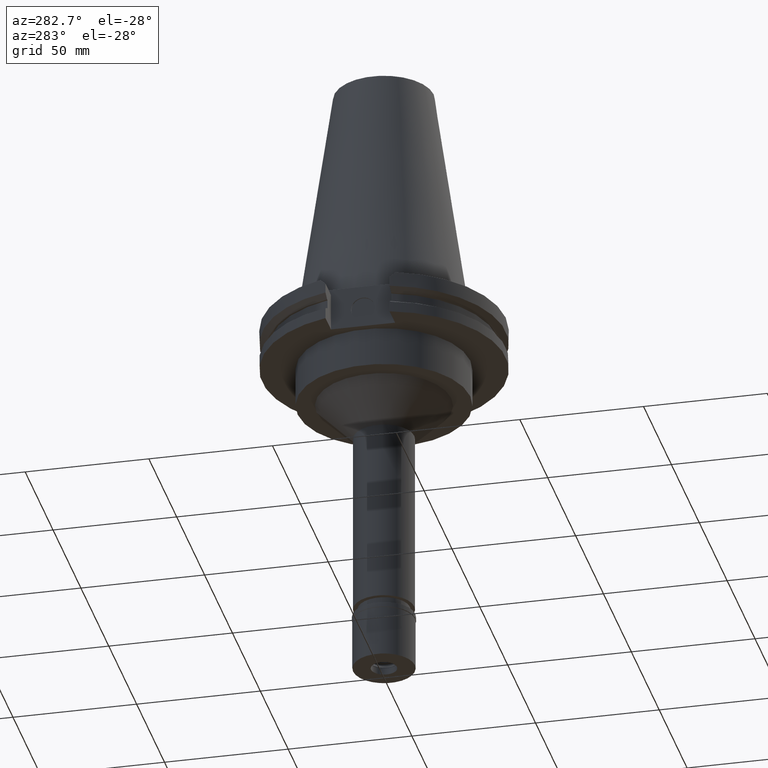
[diagram: clean part render]
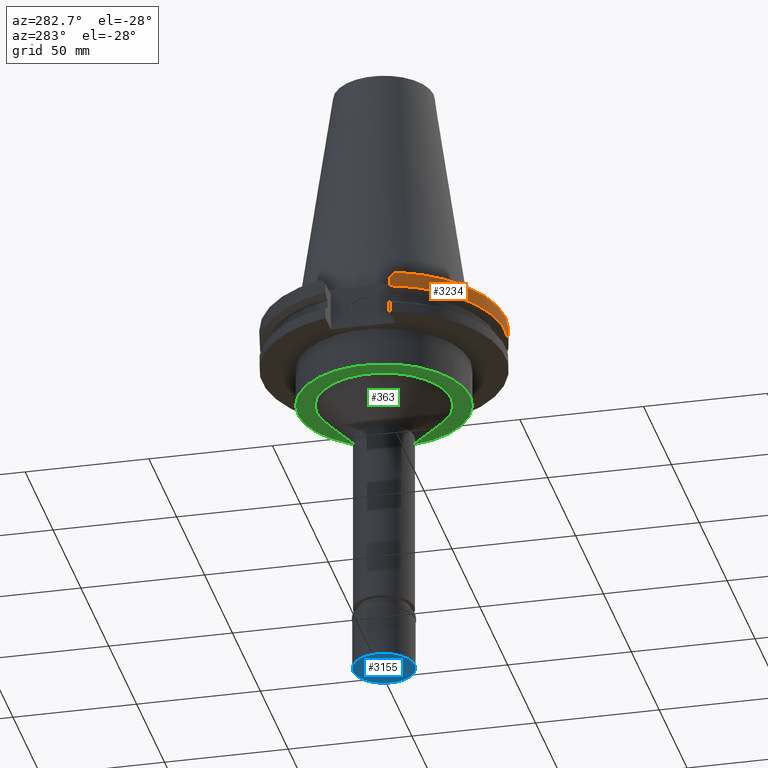
[diagram: same view with three faces highlighted in distinct colors, each labeled with its STEP entity id]
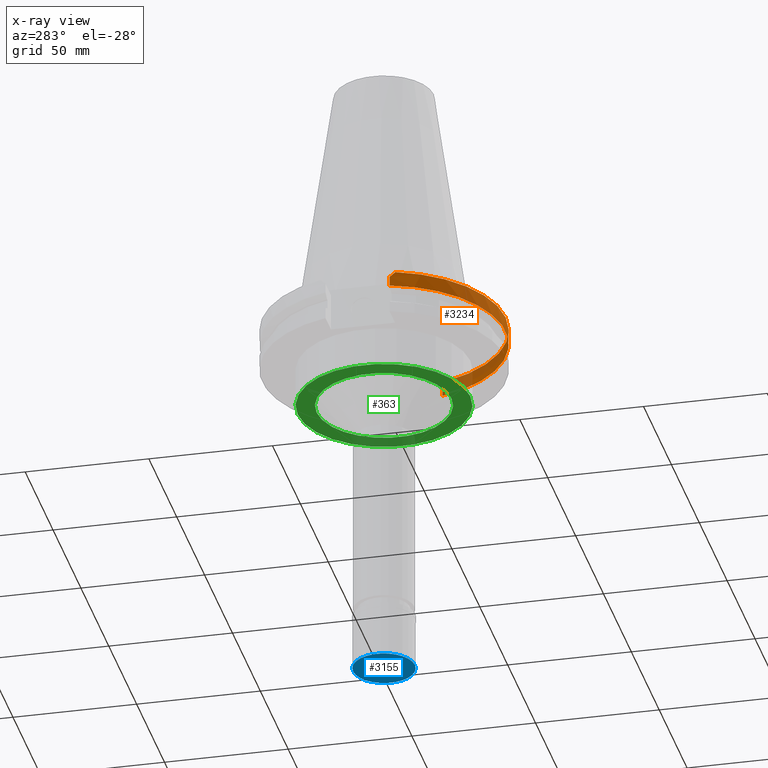
[diagram: x-ray of the same camera — body ghosted, the three highlighted faces saturated]
A machine part, auxiliary view with three faces highlighted in distinct colors.
The next image is the same camera in x-ray (body ghosted, the three faces saturated) — at least one of them is partly hidden behind the body in this view.
Their STEP definitions:

[orange] entity #3234 — the highlighted cylindrical surface (partial cylindrical patch) has radius 49.2125 mm, axis along (0, 0, -1).
#24 = VERTEX_POINT ( 'NONE', #3129 ) ;
#34 = EDGE_CURVE ( 'NONE', #323, #24, #1083, .T. ) ;
#40 = AXIS2_PLACEMENT_3D ( 'NONE', #1394, #874, #1177 ) ;
#301 = AXIS2_PLACEMENT_3D ( 'NONE', #749, #2556, #1012 ) ;
#323 = VERTEX_POINT ( 'NONE', #1026 ) ;
#335 = LINE ( 'NONE', #2396, #2389 ) ;
#336 = VECTOR ( 'NONE', #1097, 1000.000000000000000 ) ;
#373 = ORIENTED_EDGE ( 'NONE', *, *, #679, .F. ) ;
#509 = CARTESIAN_POINT ( 'NONE',  ( 47.47671146204000081, -12.95500000000000007, -7.601333230924999462 ) ) ;
#516 = DIRECTION ( 'NONE',  ( 0.0000000000000000000, -1.000000000000000000, 0.0000000000000000000 ) ) ;
#679 = EDGE_CURVE ( 'NONE', #24, #2202, #2578, .T. ) ;
#694 = ORIENTED_EDGE ( 'NONE', *, *, #3109, .F. ) ;
#715 = VERTEX_POINT ( 'NONE', #2516 ) ;
#749 = CARTESIAN_POINT ( 'NONE',  ( 0.0000000000000000000, 2.618907179976999641E-14, 113.8500000000000085 ) ) ;
#848 = CARTESIAN_POINT ( 'NONE',  ( -47.47671146204000081, -12.95500000000000007, -7.601333230924999462 ) ) ;
#874 = DIRECTION ( 'NONE',  ( 0.0000000000000000000, 0.0000000000000000000, 1.000000000000000000 ) ) ;
#899 = ORIENTED_EDGE ( 'NONE', *, *, #3320, .T. ) ;
#955 = VERTEX_POINT ( 'NONE', #509 ) ;
#1012 = DIRECTION ( 'NONE',  ( 0.0000000000000000000, -1.000000000000000000, 0.0000000000000000000 ) ) ;
#1026 = CARTESIAN_POINT ( 'NONE',  ( -47.47671146204000081, -12.95500000000000007, -7.601333230924999462 ) ) ;
#1034 = EDGE_CURVE ( 'NONE', #2332, #955, #335, .T. ) ;
#1063 = AXIS2_PLACEMENT_3D ( 'NONE', #1249, #1232, #516 ) ;
#1083 = LINE ( 'NONE', #848, #336 ) ;
#1097 = DIRECTION ( 'NONE',  ( 2.276602297542000122E-13, 3.323839354410999792E-14, 1.000000000000000000 ) ) ;
#1128 = CARTESIAN_POINT ( 'NONE',  ( -46.82089417396999664, -15.15499999999999936, -1.500000000000000000 ) ) ;
#1177 = DIRECTION ( 'NONE',  ( -0.9647287063660957562, -0.2632461264922989486, 0.0000000000000000000 ) ) ;
#1232 = DIRECTION ( 'NONE',  ( 0.0000000000000000000, 0.0000000000000000000, -1.000000000000000000 ) ) ;
#1235 = CIRCLE ( 'NONE', #40, 49.21250000000001279 ) ;
#1249 = CARTESIAN_POINT ( 'NONE',  ( 0.0000000000000000000, 2.618907179976999641E-14, -1.500000000000000000 ) ) ;
#1327 = EDGE_LOOP ( 'NONE', ( #3134, #2451, #2378, #694, #899, #373 ) ) ;
#1394 = CARTESIAN_POINT ( 'NONE',  ( 0.0000000000000000000, 1.121722380078999823E-14, -7.601333230925999551 ) ) ;
#1436 = B_SPLINE_CURVE_WITH_KNOTS ( 'NONE', 3,
 ( #3163, #2170, #1901, #1667 ),
 .UNSPECIFIED., .F., .F.,
 ( 4, 4 ),
 ( 0.0000000000000000000, 1.000000000000000000 ),
 .UNSPECIFIED. ) ;
#1475 = CARTESIAN_POINT ( 'NONE',  ( -47.47671146204000081, -12.95500000000000007, -3.699999999999000089 ) ) ;
#1496 = CARTESIAN_POINT ( 'NONE',  ( -47.27588310256999904, -13.69098379592999848, -2.964016204073000260 ) ) ;
#1667 = CARTESIAN_POINT ( 'NONE',  ( 47.47671146204000081, -12.95500000000000007, -3.700000000000000178 ) ) ;
#1749 = CARTESIAN_POINT ( 'NONE',  ( 47.47671146204000081, -12.95500000000000007, -3.700000000000000178 ) ) ;
#1767 = FACE_OUTER_BOUND ( 'NONE', #1327, .T. ) ;
#1901 = CARTESIAN_POINT ( 'NONE',  ( 47.27588310256999904, -13.69098379592999848, -2.964016204073000260 ) ) ;
#2050 = DIRECTION ( 'NONE',  ( 2.258389479161999877E-13, -3.505967538215000196E-14, -1.000000000000000000 ) ) ;
#2135 = CIRCLE ( 'NONE', #1063, 49.21249999999999858 ) ;
#2161 = EDGE_CURVE ( 'NONE', #323, #955, #1235, .T. ) ;
#2170 = CARTESIAN_POINT ( 'NONE',  ( 47.05739607796999735, -14.42433483211999956, -2.230665167879999800 ) ) ;
#2202 = VERTEX_POINT ( 'NONE', #1128 ) ;
#2332 = VERTEX_POINT ( 'NONE', #1749 ) ;
#2378 = ORIENTED_EDGE ( 'NONE', *, *, #1034, .F. ) ;
#2389 = VECTOR ( 'NONE', #2050, 1000.000000000000000 ) ;
#2396 = CARTESIAN_POINT ( 'NONE',  ( 47.47671146204000081, -12.95500000000000007, -3.700000000000000178 ) ) ;
#2451 = ORIENTED_EDGE ( 'NONE', *, *, #2161, .T. ) ;
#2500 = CARTESIAN_POINT ( 'NONE',  ( -47.05739607796999735, -14.42433483211999956, -2.230665167879999800 ) ) ;
#2516 = CARTESIAN_POINT ( 'NONE',  ( 46.82089417396999664, -15.15499999999999936, -1.500000000000000000 ) ) ;
#2523 = CYLINDRICAL_SURFACE ( 'NONE', #301, 49.21249999999999858 ) ;
#2556 = DIRECTION ( 'NONE',  ( 0.0000000000000000000, 0.0000000000000000000, -1.000000000000000000 ) ) ;
#2578 = B_SPLINE_CURVE_WITH_KNOTS ( 'NONE', 3,
 ( #1475, #1496, #2500, #3224 ),
 .UNSPECIFIED., .F., .F.,
 ( 4, 4 ),
 ( 0.0000000000000000000, 1.000000000000000000 ),
 .UNSPECIFIED. ) ;
#3109 = EDGE_CURVE ( 'NONE', #715, #2332, #1436, .T. ) ;
#3129 = CARTESIAN_POINT ( 'NONE',  ( -47.47671146204000081, -12.95500000000000007, -3.699999999999000089 ) ) ;
#3134 = ORIENTED_EDGE ( 'NONE', *, *, #34, .F. ) ;
#3163 = CARTESIAN_POINT ( 'NONE',  ( 46.82089417396999664, -15.15499999999999936, -1.500000000000000000 ) ) ;
#3224 = CARTESIAN_POINT ( 'NONE',  ( -46.82089417396999664, -15.15499999999999936, -1.500000000000000000 ) ) ;
#3234 = ADVANCED_FACE ( 'NONE', ( #1767 ), #2523, .T. ) ;
#3320 = EDGE_CURVE ( 'NONE', #715, #2202, #2135, .T. ) ;

[blue] entity #3155 — the highlighted planar face has unit normal (0, 0, -1).
#47 = VERTEX_POINT ( 'NONE', #2644 ) ;
#99 = CARTESIAN_POINT ( 'NONE',  ( 0.0000000000000000000, -5.250000000000000000, -22.89999999999999858 ) ) ;
#157 = CARTESIAN_POINT ( 'NONE',  ( 0.0000000000000000000, 0.0000000000000000000, -22.89999999999999858 ) ) ;
#221 = CARTESIAN_POINT ( 'NONE',  ( 0.0000000000000000000, -12.50000000000000000, -22.89999999999999858 ) ) ;
#303 = ORIENTED_EDGE ( 'NONE', *, *, #3199, .F. ) ;
#389 = DIRECTION ( 'NONE',  ( 0.0000000000000000000, 0.0000000000000000000, 1.000000000000000000 ) ) ;
#453 = VERTEX_POINT ( 'NONE', #3062 ) ;
#490 = EDGE_CURVE ( 'NONE', #1371, #453, #2703, .T. ) ;
#578 = CIRCLE ( 'NONE', #1875, 5.250000000000000000 ) ;
#655 = EDGE_LOOP ( 'NONE', ( #2181, #1556 ) ) ;
#657 = AXIS2_PLACEMENT_3D ( 'NONE', #2700, #389, #1141 ) ;
#713 = DIRECTION ( 'NONE',  ( 0.0000000000000000000, 0.0000000000000000000, -1.000000000000000000 ) ) ;
#913 = FACE_BOUND ( 'NONE', #655, .T. ) ;
#1018 = AXIS2_PLACEMENT_3D ( 'NONE', #2524, #2755, #1784 ) ;
#1118 = VERTEX_POINT ( 'NONE', #99 ) ;
#1129 = DIRECTION ( 'NONE',  ( 0.0000000000000000000, 1.000000000000000000, 0.0000000000000000000 ) ) ;
#1141 = DIRECTION ( 'NONE',  ( 0.0000000000000000000, -1.000000000000000000, 0.0000000000000000000 ) ) ;
#1181 = CARTESIAN_POINT ( 'NONE',  ( 0.0000000000000000000, 0.0000000000000000000, -22.89999999999999858 ) ) ;
#1224 = AXIS2_PLACEMENT_3D ( 'NONE', #1919, #2189, #2741 ) ;
#1332 = CIRCLE ( 'NONE', #2720, 12.50000000000000000 ) ;
#1371 = VERTEX_POINT ( 'NONE', #221 ) ;
#1467 = PLANE ( 'NONE',  #1224 ) ;
#1556 = ORIENTED_EDGE ( 'NONE', *, *, #1793, .F. ) ;
#1670 = EDGE_LOOP ( 'NONE', ( #303, #1676 ) ) ;
#1676 = ORIENTED_EDGE ( 'NONE', *, *, #490, .F. ) ;
#1735 = EDGE_CURVE ( 'NONE', #47, #1118, #578, .T. ) ;
#1784 = DIRECTION ( 'NONE',  ( 0.0000000000000000000, -1.000000000000000000, 0.0000000000000000000 ) ) ;
#1793 = EDGE_CURVE ( 'NONE', #1118, #47, #1929, .T. ) ;
#1875 = AXIS2_PLACEMENT_3D ( 'NONE', #157, #713, #3231 ) ;
#1919 = CARTESIAN_POINT ( 'NONE',  ( 0.0000000000000000000, 0.0000000000000000000, -22.89999999999999858 ) ) ;
#1929 = CIRCLE ( 'NONE', #1018, 5.250000000000000000 ) ;
#2181 = ORIENTED_EDGE ( 'NONE', *, *, #1735, .F. ) ;
#2189 = DIRECTION ( 'NONE',  ( 0.0000000000000000000, 0.0000000000000000000, -1.000000000000000000 ) ) ;
#2524 = CARTESIAN_POINT ( 'NONE',  ( 0.0000000000000000000, 0.0000000000000000000, -22.89999999999999858 ) ) ;
#2644 = CARTESIAN_POINT ( 'NONE',  ( 0.0000000000000000000, 5.250000000000000000, -22.89999999999999858 ) ) ;
#2700 = CARTESIAN_POINT ( 'NONE',  ( 0.0000000000000000000, 0.0000000000000000000, -22.89999999999999858 ) ) ;
#2703 = CIRCLE ( 'NONE', #657, 12.50000000000000000 ) ;
#2720 = AXIS2_PLACEMENT_3D ( 'NONE', #1181, #2958, #1129 ) ;
#2741 = DIRECTION ( 'NONE',  ( 0.0000000000000000000, -1.000000000000000000, 0.0000000000000000000 ) ) ;
#2755 = DIRECTION ( 'NONE',  ( 0.0000000000000000000, 0.0000000000000000000, -1.000000000000000000 ) ) ;
#2958 = DIRECTION ( 'NONE',  ( 0.0000000000000000000, 0.0000000000000000000, 1.000000000000000000 ) ) ;
#3062 = CARTESIAN_POINT ( 'NONE',  ( 0.0000000000000000000, 12.50000000000000000, -22.89999999999999858 ) ) ;
#3155 = ADVANCED_FACE ( 'NONE', ( #3181, #913 ), #1467, .T. ) ;
#3181 = FACE_OUTER_BOUND ( 'NONE', #1670, .T. ) ;
#3199 = EDGE_CURVE ( 'NONE', #453, #1371, #1332, .T. ) ;
#3231 = DIRECTION ( 'NONE',  ( 0.0000000000000000000, 1.000000000000000000, 0.0000000000000000000 ) ) ;

[green] entity #363 — the highlighted planar face has unit normal (0, 0, -1).
#98 = EDGE_CURVE ( 'NONE', #922, #1625, #441, .T. ) ;
#187 = AXIS2_PLACEMENT_3D ( 'NONE', #393, #2208, #2915 ) ;
#223 = ORIENTED_EDGE ( 'NONE', *, *, #3093, .F. ) ;
#309 = CARTESIAN_POINT ( 'NONE',  ( 0.0000000000000000000, 0.0000000000000000000, -35.00000000000000000 ) ) ;
#363 = ADVANCED_FACE ( 'NONE', ( #3050, #2072 ), #1803, .T. ) ;
#393 = CARTESIAN_POINT ( 'NONE',  ( 0.0000000000000000000, 2.618907179976999641E-14, -35.00000000000000000 ) ) ;
#398 = VERTEX_POINT ( 'NONE', #1834 ) ;
#441 = CIRCLE ( 'NONE', #1308, 34.92499999999999716 ) ;
#481 = CARTESIAN_POINT ( 'NONE',  ( 0.0000000000000000000, 27.25000000000000000, -35.00000000000000000 ) ) ;
#493 = CARTESIAN_POINT ( 'NONE',  ( 0.0000000000000000000, -34.92499999999999716, -35.00000000000000000 ) ) ;
#553 = DIRECTION ( 'NONE',  ( 0.0000000000000000000, -1.000000000000000000, 0.0000000000000000000 ) ) ;
#647 = CARTESIAN_POINT ( 'NONE',  ( 0.0000000000000000000, 34.92499999999999716, -35.00000000000000000 ) ) ;
#752 = EDGE_LOOP ( 'NONE', ( #223, #998 ) ) ;
#757 = ORIENTED_EDGE ( 'NONE', *, *, #2234, .F. ) ;
#894 = DIRECTION ( 'NONE',  ( 0.0000000000000000000, 0.0000000000000000000, -1.000000000000000000 ) ) ;
#922 = VERTEX_POINT ( 'NONE', #493 ) ;
#998 = ORIENTED_EDGE ( 'NONE', *, *, #98, .F. ) ;
#1180 = AXIS2_PLACEMENT_3D ( 'NONE', #2913, #894, #2930 ) ;
#1260 = CARTESIAN_POINT ( 'NONE',  ( 0.0000000000000000000, 0.0000000000000000000, -35.00000000000000000 ) ) ;
#1295 = DIRECTION ( 'NONE',  ( 0.0000000000000000000, 0.0000000000000000000, -1.000000000000000000 ) ) ;
#1308 = AXIS2_PLACEMENT_3D ( 'NONE', #1378, #1336, #553 ) ;
#1336 = DIRECTION ( 'NONE',  ( 0.0000000000000000000, 0.0000000000000000000, 1.000000000000000000 ) ) ;
#1375 = CIRCLE ( 'NONE', #1862, 27.25000000000000000 ) ;
#1378 = CARTESIAN_POINT ( 'NONE',  ( 0.0000000000000000000, 2.618907179976999641E-14, -35.00000000000000000 ) ) ;
#1625 = VERTEX_POINT ( 'NONE', #647 ) ;
#1733 = DIRECTION ( 'NONE',  ( 0.0000000000000000000, 1.000000000000000000, 0.0000000000000000000 ) ) ;
#1771 = CIRCLE ( 'NONE', #1180, 27.25000000000000000 ) ;
#1803 = PLANE ( 'NONE',  #1958 ) ;
#1834 = CARTESIAN_POINT ( 'NONE',  ( 0.0000000000000000000, -27.25000000000000000, -35.00000000000000000 ) ) ;
#1862 = AXIS2_PLACEMENT_3D ( 'NONE', #1260, #2289, #1733 ) ;
#1923 = CIRCLE ( 'NONE', #187, 34.92499999999999716 ) ;
#1958 = AXIS2_PLACEMENT_3D ( 'NONE', #309, #1295, #2038 ) ;
#2038 = DIRECTION ( 'NONE',  ( 0.0000000000000000000, -1.000000000000000000, 0.0000000000000000000 ) ) ;
#2072 = FACE_BOUND ( 'NONE', #2580, .T. ) ;
#2208 = DIRECTION ( 'NONE',  ( 0.0000000000000000000, 0.0000000000000000000, 1.000000000000000000 ) ) ;
#2234 = EDGE_CURVE ( 'NONE', #398, #2432, #1771, .T. ) ;
#2289 = DIRECTION ( 'NONE',  ( 0.0000000000000000000, 0.0000000000000000000, -1.000000000000000000 ) ) ;
#2432 = VERTEX_POINT ( 'NONE', #481 ) ;
#2450 = EDGE_CURVE ( 'NONE', #2432, #398, #1375, .T. ) ;
#2580 = EDGE_LOOP ( 'NONE', ( #3204, #757 ) ) ;
#2913 = CARTESIAN_POINT ( 'NONE',  ( 0.0000000000000000000, 0.0000000000000000000, -35.00000000000000000 ) ) ;
#2915 = DIRECTION ( 'NONE',  ( 0.0000000000000000000, 1.000000000000000000, 0.0000000000000000000 ) ) ;
#2930 = DIRECTION ( 'NONE',  ( 0.0000000000000000000, -1.000000000000000000, 0.0000000000000000000 ) ) ;
#3050 = FACE_OUTER_BOUND ( 'NONE', #752, .T. ) ;
#3093 = EDGE_CURVE ( 'NONE', #1625, #922, #1923, .T. ) ;
#3204 = ORIENTED_EDGE ( 'NONE', *, *, #2450, .F. ) ;